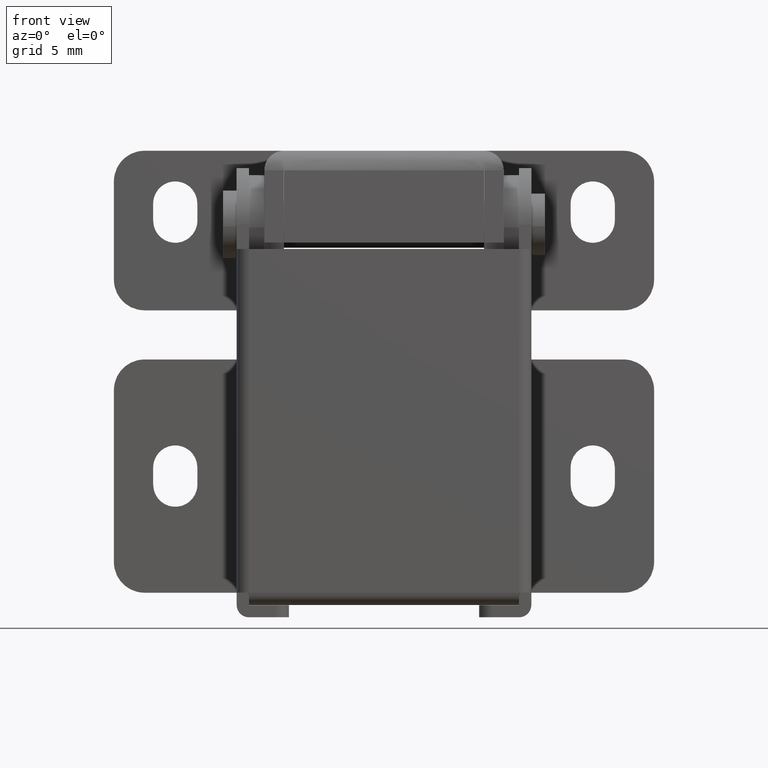
[diagram: clean part render]
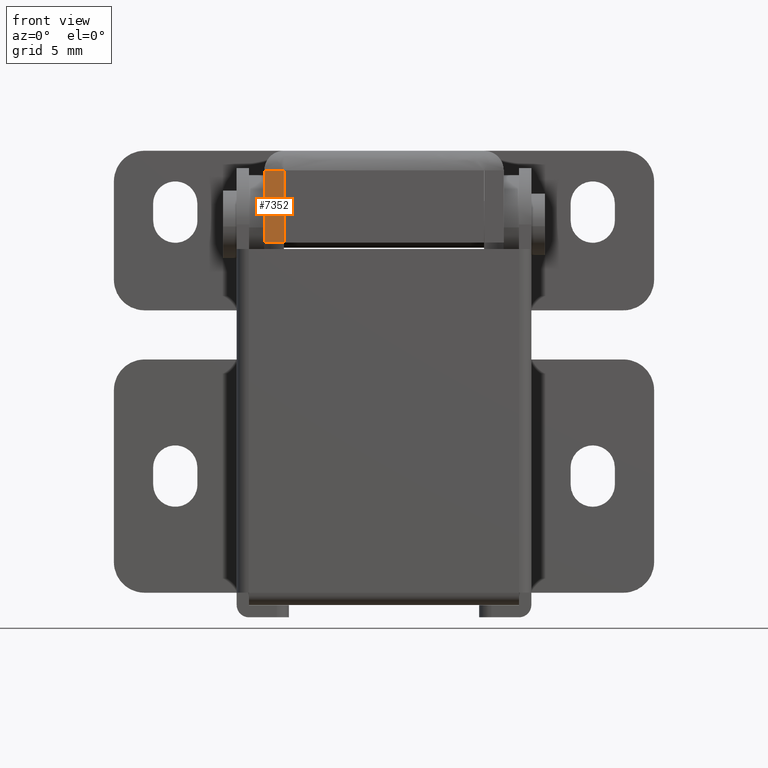
[diagram: same view with one face highlighted and labeled with its STEP entity id]
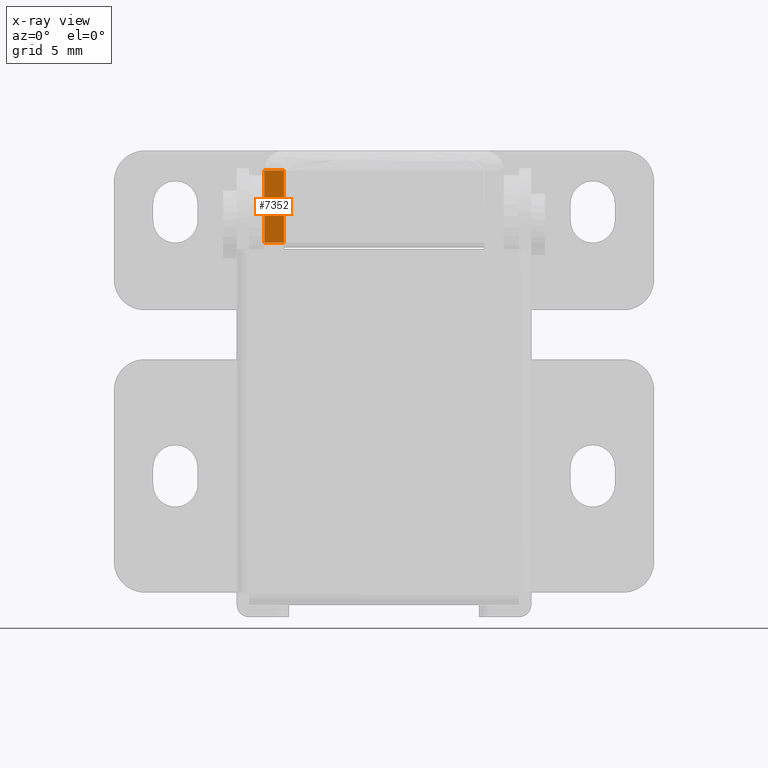
[diagram: x-ray of the same camera — body ghosted, the highlighted face saturated]
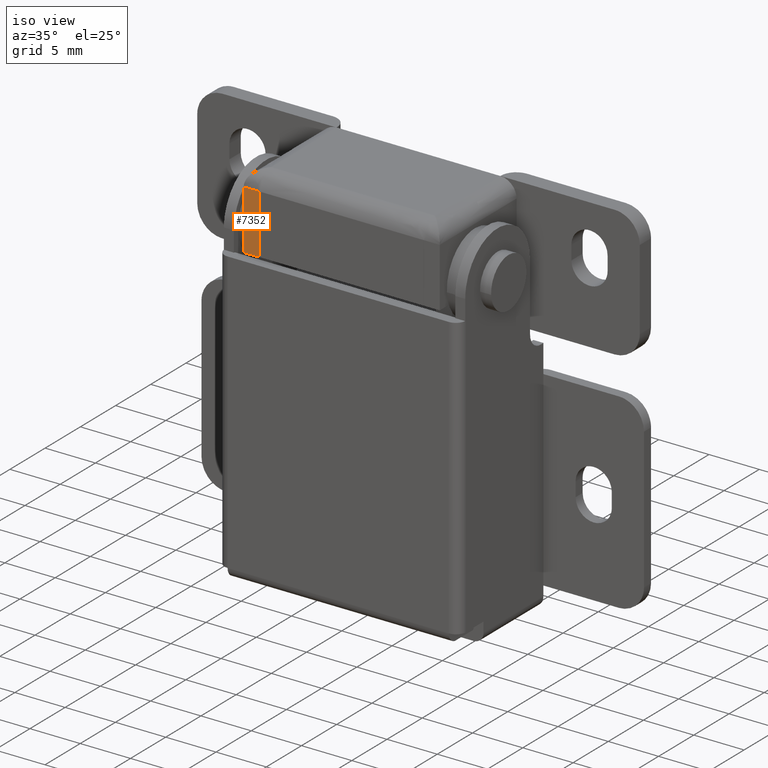
[diagram: same view with one face highlighted and labeled with its STEP entity id]
A machine part, front view. The second image highlights one B-rep face of the part: STEP entity #7352.
The next image is the same camera in x-ray: the body ghosted, the highlighted face saturated — about 0% of this face is hidden behind the body in this view.
A second angle (iso view) of the same face is appended — the face is thin or edge-on in the first view.
In plain terms, the highlighted face is a freeform B-spline surface patch.
Its self-contained STEP definition (entity closure, byte-faithful):
#5609=CARTESIAN_POINT('',(-9.750000000000000,-5.0,4.400000000000000));
#5610=VERTEX_POINT('',#5609);
#5626=CARTESIAN_POINT('',(-8.149993999999911,-5.0,4.400000000000000));
#5627=VERTEX_POINT('',#5626);
#5628=CARTESIAN_POINT('',(-8.149993999999911,-5.0,4.400000000000000));
#5629=CARTESIAN_POINT('',(-9.750000000000000,-5.0,4.400000000000000));
#5630=QUASI_UNIFORM_CURVE('',1,(#5628,#5629),.UNSPECIFIED.,.F.,.U.);
#5631=EDGE_CURVE('',#5627,#5610,#5630,.T.);
#6897=CARTESIAN_POINT('',(-8.149993999999911,-5.0,-1.500000000000000));
#6898=VERTEX_POINT('',#6897);
#6904=CARTESIAN_POINT('',(-9.750000000000000,-5.0,-1.500000000000000));
#6905=VERTEX_POINT('',#6904);
#6906=CARTESIAN_POINT('',(-9.750000000000000,-5.0,-1.500000000000000));
#6907=CARTESIAN_POINT('',(-8.149993999999911,-5.0,-1.500000000000000));
#6908=QUASI_UNIFORM_CURVE('',1,(#6906,#6907),.UNSPECIFIED.,.F.,.U.);
#6909=EDGE_CURVE('',#6905,#6898,#6908,.T.);
#7232=CARTESIAN_POINT('',(-8.149993999999911,-5.0,4.400000000000000));
#7233=CARTESIAN_POINT('',(-8.149993999999911,-5.0,-1.500000000000000));
#7234=QUASI_UNIFORM_CURVE('',1,(#7232,#7233),.UNSPECIFIED.,.F.,.U.);
#7235=EDGE_CURVE('',#5627,#6898,#7234,.T.);
#7261=CARTESIAN_POINT('',(-9.750000000000000,-5.0,4.400000000000000));
#7262=CARTESIAN_POINT('',(-9.750000000000000,-5.0,-1.500000000000000));
#7263=QUASI_UNIFORM_CURVE('',1,(#7261,#7262),.UNSPECIFIED.,.F.,.U.);
#7264=EDGE_CURVE('',#5610,#6905,#7263,.T.);
#7341=CARTESIAN_POINT('',(-9.829920302315227,-5.0,-1.794704988564655));
#7342=CARTESIAN_POINT('',(-8.070073540327829,-5.0,-1.794704988564655));
#7343=CARTESIAN_POINT('',(-9.829920302315227,-5.0,4.694705146814987));
#7344=CARTESIAN_POINT('',(-8.070073540327829,-5.0,4.694705146814987));
#7345=B_SPLINE_SURFACE_WITH_KNOTS('',1,1,((#7341,#7343),(#7342,#7344)),.UNSPECIFIED.,.F.,.F.,.U.,(2,2),(2,2),(0.041708331971243,0.958291749985144),(0.0,6.489410135379641),.UNSPECIFIED.);
#7346=ORIENTED_EDGE('',*,*,#7235,.F.);
#7347=ORIENTED_EDGE('',*,*,#5631,.T.);
#7348=ORIENTED_EDGE('',*,*,#7264,.T.);
#7349=ORIENTED_EDGE('',*,*,#6909,.T.);
#7350=EDGE_LOOP('',(#7346,#7347,#7348,#7349));
#7351=FACE_OUTER_BOUND('',#7350,.T.);
#7352=ADVANCED_FACE('',(#7351),#7345,.T.);